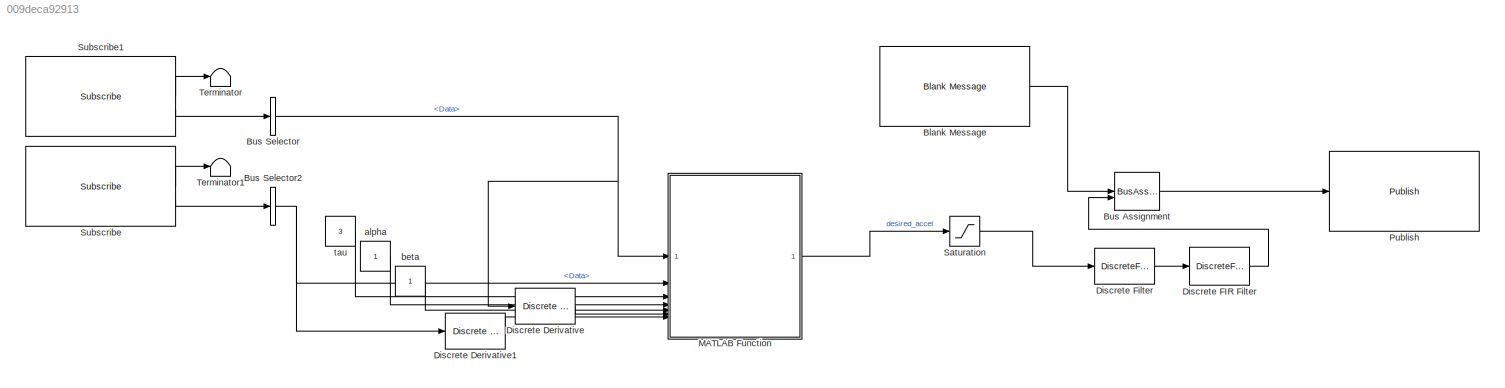
MODEL slx_009deca92913
KIND model
CONFIG AbsTol = auto
CONFIG EnableMultiTasking = off
CONFIG FixedStep = auto
CONFIG MaxStep = auto
CONFIG MinStep = auto
CONFIG RelTol = 1e-3
CONFIG SampleTimeConstraint = Unconstrained
CONFIG SolverName = FixedStepAuto
CONFIG StartTime = 0.0
CONFIG StopTime = 10.0
BLOCK [Reference] Blank Message  REF=robotlib/Blank Message
  SourceBlock = robotlib/Blank Message
  SourceType = ROS Blank Message
BLOCK [BusAssignment] Bus Assignment
  AssignedSignals = Data
BLOCK [BusSelector] Bus Selector
  OutputSignals = Data
BLOCK [BusSelector] Bus Selector2
  OutputSignals = Data
BLOCK [Reference] Discrete Derivative  REF=simulink/Discrete/Discrete Derivative
  SourceBlock = simulink/Discrete/Discrete Derivative
  SourceType = Discrete Derivative
BLOCK [Reference] Discrete Derivative1  REF=simulink/Discrete/Discrete Derivative
  SourceBlock = simulink/Discrete/Discrete Derivative
  SourceType = Discrete Derivative
BLOCK [DiscreteFir] Discrete FIR Filter
  Coefficients = [0.1 0.1 0.1 0.1 0.1 0.1 0.1 0.1 0.1 0.1]
  InputPortMap = u0
  OutputPortMap = o0
BLOCK [DiscreteFilter] Discrete Filter
  InputPortMap = u0
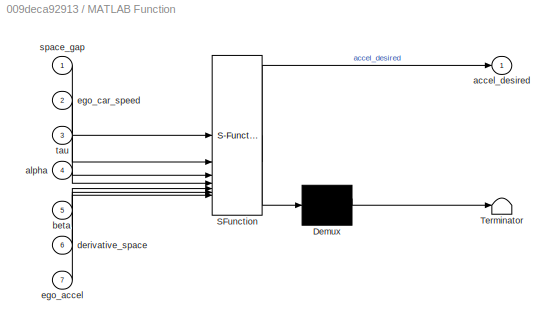
BLOCK [SubSystem] MATLAB Function
  ErrorFcn = Stateflow.Translate.translate
  PermitHierarchicalResolution = ExplicitOnly
  SFBlockType = MATLAB Function
  TreatAsAtomicUnit = on
BLOCK [Demux] MATLAB Function/ Demux 
  Outputs = 1
BLOCK [S-Function] MATLAB Function/ SFunction 
  EnableBusSupport = on
  FunctionName = sf_sfun
  PortCounts = [7 2]
  SFcnIsStateOwnerBlock = off
  SFunctionDeploymentMode = off
  Tag = Stateflow S-Function 1
BLOCK [Terminator] MATLAB Function/ Terminator 
BLOCK [Outport] MATLAB Function/accel_desired
BLOCK [Inport] MATLAB Function/alpha
  Port = 4
BLOCK [Inport] MATLAB Function/beta
  Port = 5
BLOCK [Inport] MATLAB Function/derivative_space
  Port = 6
BLOCK [Inport] MATLAB Function/ego_accel
  Port = 7
BLOCK [Inport] MATLAB Function/ego_car_speed
  Port = 2
BLOCK [Inport] MATLAB Function/space_gap
BLOCK [Inport] MATLAB Function/tau
  Port = 3
BLOCK [Reference] Publish  REF=robotlib/Publish
  SourceBlock = robotlib/Publish
  SourceType = ROS Publish
BLOCK [Saturate] Saturation
  LowerLimit = -3.0
  UpperLimit = 1.5
BLOCK [Reference] Subscribe  REF=robotlib/Subscribe
  SourceBlock = robotlib/Subscribe
  SourceType = ROS Subscribe
BLOCK [Reference] Subscribe1  REF=robotlib/Subscribe
  SourceBlock = robotlib/Subscribe
  SourceType = ROS Subscribe
BLOCK [Terminator] Terminator
BLOCK [Terminator] Terminator1
BLOCK [Constant] alpha
BLOCK [Constant] beta
BLOCK [Constant] tau
  Value = 3
LINE Blank Message:1 -> Bus Assignment:1
LINE Bus Assignment:1 -> Publish:1
NET Bus Selector2:1 -> Discrete Derivative1:1, MATLAB Function:2
NET Bus Selector:1 -> Discrete Derivative:1, MATLAB Function:1
LINE Discrete Derivative1:1 -> MATLAB Function:7
LINE Discrete Derivative:1 -> MATLAB Function:6
LINE Discrete FIR Filter:1 -> Bus Assignment:2
LINE Discrete Filter:1 -> Discrete FIR Filter:1
LINE MATLAB Function:1 -> Saturation:1
LINE Saturation:1 -> Discrete Filter:1
LINE Subscribe1:1 -> Terminator:1
LINE Subscribe1:2 -> Bus Selector:1
LINE Subscribe:1 -> Terminator1:1
LINE Subscribe:2 -> Bus Selector2:1
LINE alpha:1 -> MATLAB Function:4
LINE beta:1 -> MATLAB Function:5
LINE tau:1 -> MATLAB Function:3
note: NET lines group one-source signal fan-out (src -> all destinations, sorted); 1:1 wires keep LINE
CHART MATLAB Function states=1 transitions=1
  STATE_LABEL 'eML_blk_kernel()'
  STATE_LABEL 'SCRIPT:\nfunction accel_desired = constant_time_gap(space_gap, ego_car_speed, tau, alpha, beta, derivative_space, ego_accel)\n\naccel_desired = alpha * (space_gap - tau * ego_car_speed) + beta * (derivative_space - tau * ego_accel);'
CHART  states=0 transitions=0
